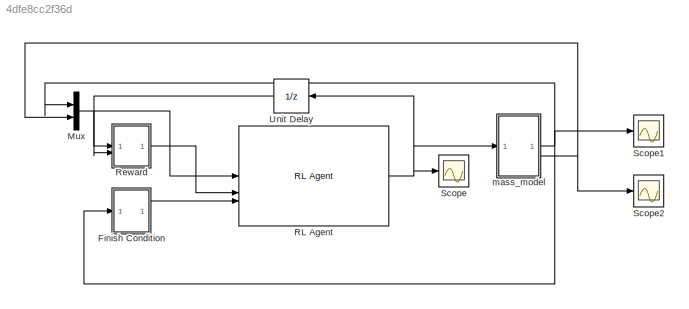
MODEL slx_4dfe8cc2f36d
KIND model
CONFIG AbsTol = auto
CONFIG EnableMultiTasking = off
CONFIG FixedStep = 0.4
CONFIG MaxStep = auto
CONFIG MinStep = auto
CONFIG RelTol = 1e-3
CONFIG SampleTimeConstraint = Unconstrained
CONFIG SolverName = FixedStepAuto
CONFIG StartTime = 0.0
CONFIG StopTime = 10.0
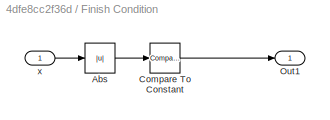
BLOCK [SubSystem] Finish Condition
BLOCK [Abs] Finish Condition/Abs
  SaturateOnIntegerOverflow = off
BLOCK [Reference] Finish Condition/Compare To Constant  REF=simulink/Logic and Bit
Operations/Compare
To Constant
  SourceBlock = simulink/Logic and Bit\nOperations/Compare\nTo Constant
  SourceType = Compare To Constant
BLOCK [Outport] Finish Condition/Out1
BLOCK [Inport] Finish Condition/x
BLOCK [Mux] Mux
  DisplayOption = bar
  Inputs = 2
BLOCK [Reference] RL Agent  REF=rllib/RL Agent
  SourceBlock = rllib/RL Agent
  SourceType = RL Agent
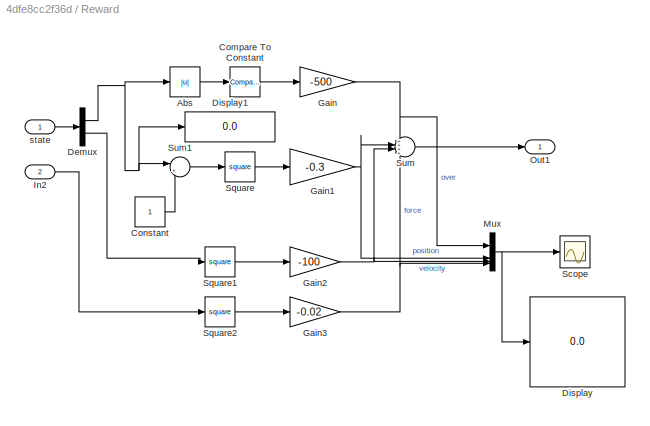
BLOCK [SubSystem] Reward
BLOCK [Abs] Reward/Abs
  SaturateOnIntegerOverflow = off
BLOCK [Reference] Reward/Compare To Constant  REF=simulink/Logic and Bit
Operations/Compare
To Constant
  SourceBlock = simulink/Logic and Bit\nOperations/Compare\nTo Constant
  SourceType = Compare To Constant
BLOCK [Constant] Reward/Constant
BLOCK [Demux] Reward/Demux
  Outputs = 2
BLOCK [Display] Reward/Display
  Decimation = 1
BLOCK [Display] Reward/Display1
  Decimation = 1
BLOCK [Gain] Reward/Gain
  Gain = -500
  OutDataTypeStr = double
BLOCK [Gain] Reward/Gain1
  Gain = -0.3
BLOCK [Gain] Reward/Gain2
  Gain = -100
BLOCK [Gain] Reward/Gain3
  Gain = -0.02
BLOCK [Inport] Reward/In2
  Port = 2
BLOCK [Mux] Reward/Mux
  DisplayOption = bar
BLOCK [Outport] Reward/Out1
BLOCK [Scope] Reward/Scope
  Floating = off
  NumInputPorts = 1
  ScopeSpecificationString = Simulink.scopes.TimeScopeBlockCfg('CurrentConfiguration', extmgr.ConfigurationSet(extmgr.Configuration('Core','General UI',true),extmgr.Configuration('Core','Source UI',true),extmgr.Configuration('Sources','WiredSimulink',true,'DataLoggingVariableName','ScopeData1'),extmgr.Configuration('Visuals','Time Domain',true,'SerializedDisplays',{struct('MinYLimReal','-562.5','MaxYLimReal','62.5','YLabelRea...<+1434ch>
BLOCK [Math] Reward/Square
  Operator = square
BLOCK [Math] Reward/Square1
  Operator = square
BLOCK [Math] Reward/Square2
  Operator = square
BLOCK [Sum] Reward/Sum
  Inputs = ++++
BLOCK [Sum] Reward/Sum1
  Inputs = |+-
BLOCK [Inport] Reward/state
BLOCK [Scope] Scope
  Floating = off
  NumInputPorts = 1
  ScopeSpecificationString = Simulink.scopes.TimeScopeBlockCfg('CurrentConfiguration', extmgr.ConfigurationSet(extmgr.Configuration('Core','General UI',true),extmgr.Configuration('Core','Source UI',true),extmgr.Configuration('Sources','WiredSimulink',true),extmgr.Configuration('Visuals','Time Domain',true,'SerializedDisplays',{struct('MinYLimReal','1.21429','MaxYLimReal','2.0873','YLabelReal','','MinYLimMag','1.21429','MaxYLi...<+1364ch>
BLOCK [Scope] Scope1
  Floating = off
  NumInputPorts = 1
  ScopeSpecificationString = Simulink.scopes.TimeScopeBlockCfg('CurrentConfiguration', extmgr.ConfigurationSet(extmgr.Configuration('Core','General UI',true),extmgr.Configuration('Core','Source UI',true),extmgr.Configuration('Sources','WiredSimulink',true,'DataLoggingVariableName','ScopeData1'),extmgr.Configuration('Visuals','Time Domain',true,'SerializedDisplays',{struct('MinYLimReal','-2.7283','MaxYLimReal','24.5547','YLabe...<+1411ch>
BLOCK [Scope] Scope2
  Floating = off
  NumInputPorts = 1
  ScopeSpecificationString = Simulink.scopes.TimeScopeBlockCfg('CurrentConfiguration', extmgr.ConfigurationSet(extmgr.Configuration('Core','General UI',true),extmgr.Configuration('Core','Source UI',true),extmgr.Configuration('Sources','WiredSimulink',true,'DataLoggingVariableName','ScopeData2'),extmgr.Configuration('Visuals','Time Domain',true),extmgr.Configuration('Tools','Plot Navigation',true),extmgr.Configuration('Tools',...<+40ch>
BLOCK [UnitDelay] Unit Delay
  HasFrameUpgradeWarning = on
  SampleTime = -1
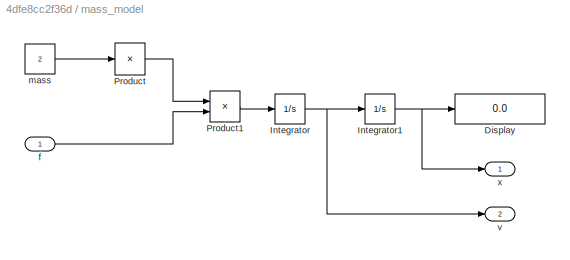
BLOCK [SubSystem] mass_model
BLOCK [Display] mass_model/Display
  Decimation = 1
BLOCK [Integrator] mass_model/Integrator
BLOCK [Integrator] mass_model/Integrator1
BLOCK [Product] mass_model/Product
  Inputs = /
  Multiplication = Matrix(*)
BLOCK [Product] mass_model/Product1
BLOCK [Inport] mass_model/f
BLOCK [Constant] mass_model/mass
  Value = 2
BLOCK [Outport] mass_model/v
  Port = 2
BLOCK [Outport] mass_model/x
LINE Finish Condition/Abs:1 -> Finish Condition/Compare To Constant:1
LINE Finish Condition/Compare To Constant:1 -> Finish Condition/Out1:1
LINE Finish Condition/x:1 -> Finish Condition/Abs:1
LINE Finish Condition:1 -> RL Agent:3
NET Mux:1 -> RL Agent:1, Reward:1
NET RL Agent:1 -> Scope:1, Unit Delay:1, mass_model:1
LINE Reward/Abs:1 -> Reward/Compare To Constant:1
LINE Reward/Compare To Constant:1 -> Reward/Gain:1
LINE Reward/Constant:1 -> Reward/Sum1:2
NET Reward/Demux:1 -> Reward/Abs:1, Reward/Display1:1, Reward/Sum1:1
LINE Reward/Demux:2 -> Reward/Square1:1
NET Reward/Gain1:1 -> Reward/Mux:2, Reward/Sum:2
NET Reward/Gain2:1 -> Reward/Mux:3, Reward/Sum:3
NET Reward/Gain3:1 -> Reward/Mux:4, Reward/Sum:4
NET Reward/Gain:1 -> Reward/Mux:1, Reward/Sum:1
LINE Reward/In2:1 -> Reward/Square2:1
NET Reward/Mux:1 -> Reward/Display:1, Reward/Scope:1
LINE Reward/Square1:1 -> Reward/Gain2:1
LINE Reward/Square2:1 -> Reward/Gain3:1
LINE Reward/Square:1 -> Reward/Gain1:1
LINE Reward/Sum1:1 -> Reward/Square:1
LINE Reward/Sum:1 -> Reward/Out1:1
LINE Reward/state:1 -> Reward/Demux:1
LINE Reward:1 -> RL Agent:2
LINE Unit Delay:1 -> Reward:2
NET mass_model/Integrator1:1 -> mass_model/Display:1, mass_model/x:1
NET mass_model/Integrator:1 -> mass_model/Integrator1:1, mass_model/v:1
LINE mass_model/Product1:1 -> mass_model/Integrator:1
LINE mass_model/Product:1 -> mass_model/Product1:1
LINE mass_model/f:1 -> mass_model/Product1:2
LINE mass_model/mass:1 -> mass_model/Product:1
NET mass_model:1 -> Finish Condition:1, Mux:1, Scope1:1
NET mass_model:2 -> Mux:2, Scope2:1
note: NET lines group one-source signal fan-out (src -> all destinations, sorted); 1:1 wires keep LINE
